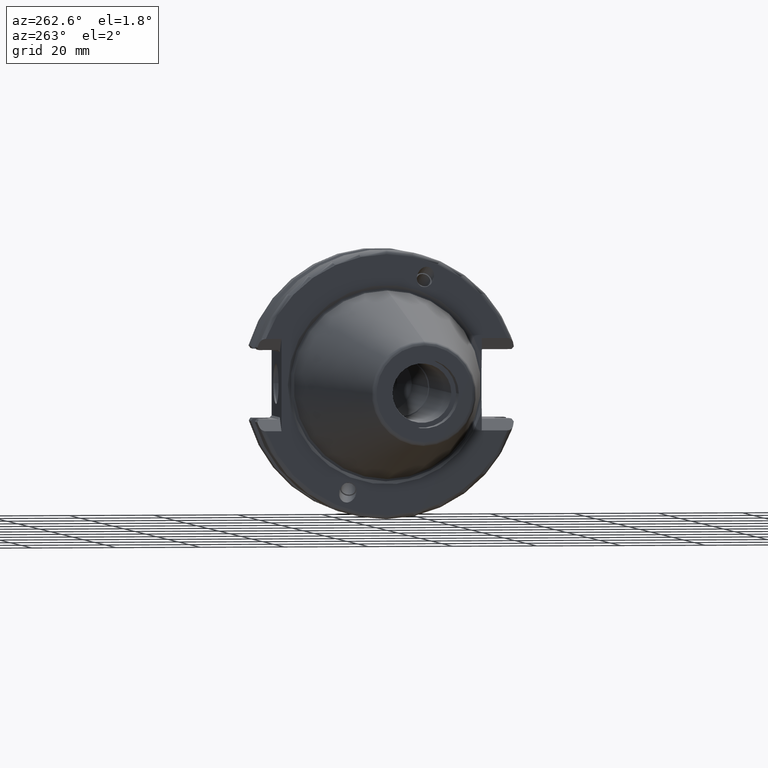
[diagram: clean part render]
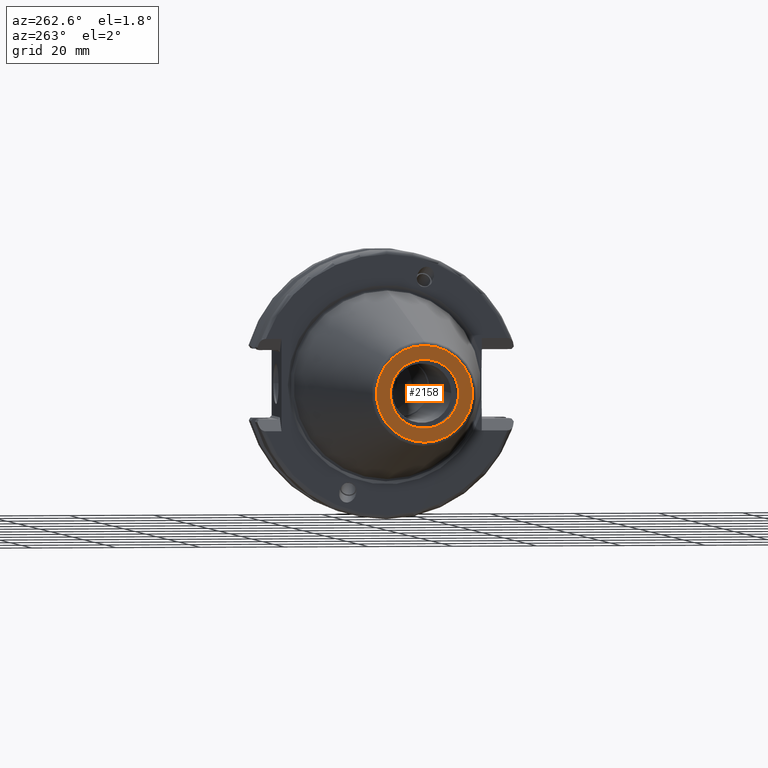
[diagram: same view with one face highlighted and labeled with its STEP entity id]
A machine part, auxiliary view. The second image highlights one B-rep face of the part: STEP entity #2158.
In plain terms, the highlighted planar face has unit normal (1, 0, 0).
Its self-contained STEP definition (entity closure, byte-faithful):
#17=CARTESIAN_POINT('',(-6.825E1,0.E0,0.E0));
#18=DIRECTION('',(-1.E0,0.E0,0.E0));
#19=DIRECTION('',(0.E0,1.E0,0.E0));
#20=AXIS2_PLACEMENT_3D('',#17,#18,#19);
#22=CARTESIAN_POINT('',(-6.825E1,0.E0,0.E0));
#23=DIRECTION('',(-1.E0,0.E0,0.E0));
#24=DIRECTION('',(0.E0,-1.E0,0.E0));
#25=AXIS2_PLACEMENT_3D('',#22,#23,#24);
#27=CARTESIAN_POINT('',(-6.825E1,0.E0,0.E0));
#28=DIRECTION('',(-1.E0,0.E0,0.E0));
#29=DIRECTION('',(0.E0,0.E0,-1.E0));
#30=AXIS2_PLACEMENT_3D('',#27,#28,#29);
#32=CARTESIAN_POINT('',(-6.825E1,0.E0,0.E0));
#33=DIRECTION('',(-1.E0,0.E0,0.E0));
#34=DIRECTION('',(0.E0,0.E0,1.E0));
#35=AXIS2_PLACEMENT_3D('',#32,#33,#34);
#1837=CARTESIAN_POINT('',(-6.825E1,8.15E0,0.E0));
#1838=CARTESIAN_POINT('',(-6.825E1,-8.15E0,0.E0));
#1839=VERTEX_POINT('',#1837);
#1840=VERTEX_POINT('',#1838);
#1845=CARTESIAN_POINT('',(-6.825E1,0.E0,-1.140713176206E1));
#1846=CARTESIAN_POINT('',(-6.825E1,0.E0,1.140713176206E1));
#1847=VERTEX_POINT('',#1845);
#1848=VERTEX_POINT('',#1846);
#2142=CARTESIAN_POINT('',(-6.825E1,0.E0,0.E0));
#2143=DIRECTION('',(1.E0,0.E0,0.E0));
#2144=DIRECTION('',(0.E0,0.E0,1.E0));
#2145=AXIS2_PLACEMENT_3D('',#2142,#2143,#2144);
#2146=PLANE('',#2145);
#2148=ORIENTED_EDGE('',*,*,#2147,.F.);
#2149=ORIENTED_EDGE('',*,*,#2132,.F.);
#2150=EDGE_LOOP('',(#2148,#2149));
#2151=FACE_OUTER_BOUND('',#2150,.F.);
#2153=ORIENTED_EDGE('',*,*,#2152,.T.);
#2155=ORIENTED_EDGE('',*,*,#2154,.T.);
#2156=EDGE_LOOP('',(#2153,#2155));
#2157=FACE_BOUND('',#2156,.F.);
#2158=ADVANCED_FACE('',(#2151,#2157),#2146,.F.);
#21=CIRCLE('',#20,8.15E0);
#26=CIRCLE('',#25,8.15E0);
#31=CIRCLE('',#30,1.140713176206E1);
#36=CIRCLE('',#35,1.140713176206E1);
#2132=EDGE_CURVE('',#1848,#1847,#36,.T.);
#2147=EDGE_CURVE('',#1847,#1848,#31,.T.);
#2152=EDGE_CURVE('',#1839,#1840,#21,.T.);
#2154=EDGE_CURVE('',#1840,#1839,#26,.T.);